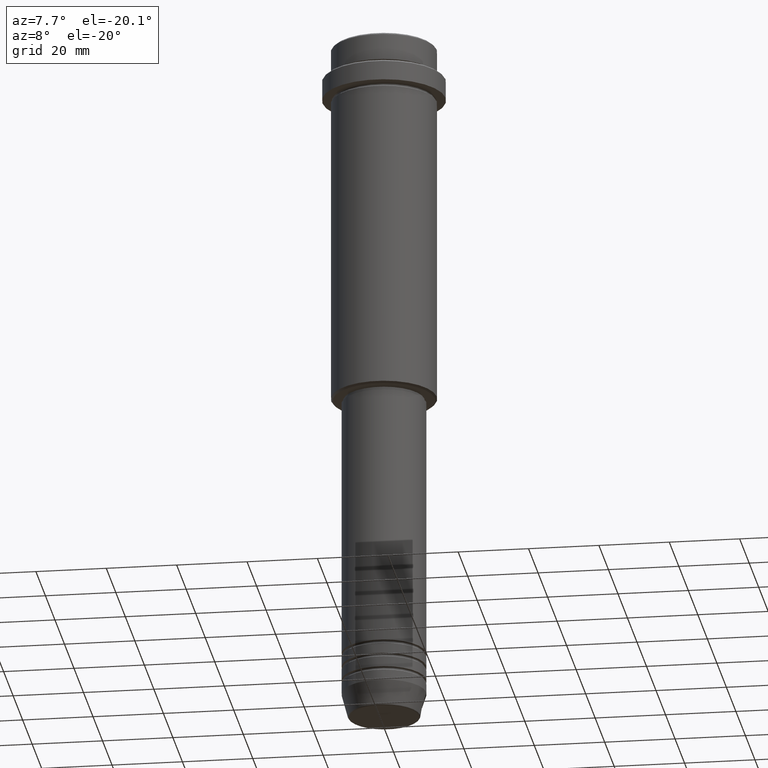
[diagram: clean part render]
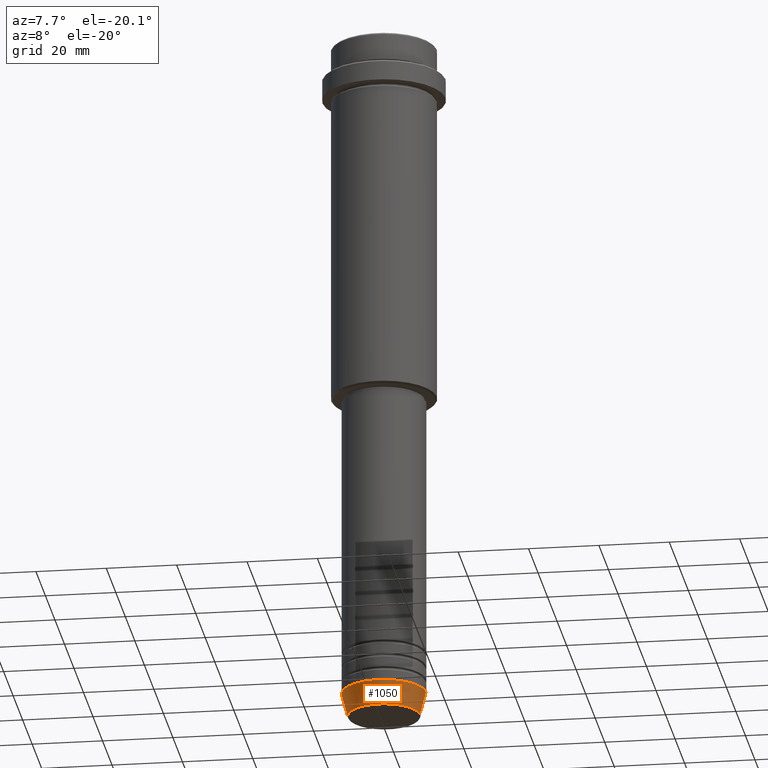
[diagram: same view with one face highlighted and labeled with its STEP entity id]
A machine part, auxiliary view. The second image highlights one B-rep face of the part: STEP entity #1050.
In plain terms, the highlighted conical surface has half-angle 15 deg.
Its self-contained STEP definition (entity closure, byte-faithful):
#16 = CARTESIAN_POINT ( 'NONE',  ( -10.22365507213719127, 1.360806402472382744E-15, -199.6294095225512706 ) ) ;
#32 = VERTEX_POINT ( 'NONE', #16 ) ;
#158 = DIRECTION ( 'NONE',  ( -0.000000000000000000, -0.000000000000000000, 1.000000000000000000 ) ) ;
#161 = EDGE_CURVE ( 'NONE', #32, #401, #841, .T. ) ;
#192 = CONICAL_SURFACE ( 'NONE', #565, 12.00000000000000000, 0.2617993877991500740 ) ;
#214 = AXIS2_PLACEMENT_3D ( 'NONE', #265, #158, #1022 ) ;
#265 = CARTESIAN_POINT ( 'NONE',  ( 0.000000000000000000, 0.000000000000000000, -193.0000000000000000 ) ) ;
#282 = ORIENTED_EDGE ( 'NONE', *, *, #161, .F. ) ;
#290 = DIRECTION ( 'NONE',  ( -0.000000000000000000, -0.000000000000000000, 1.000000000000000000 ) ) ;
#302 = DIRECTION ( 'NONE',  ( -0.2588190451025213501, 3.169619151431772337E-17, 0.9659258262890680902 ) ) ;
#305 = VERTEX_POINT ( 'NONE', #625 ) ;
#401 = VERTEX_POINT ( 'NONE', #792 ) ;
#464 = EDGE_CURVE ( 'NONE', #401, #1343, #1059, .T. ) ;
#499 = EDGE_CURVE ( 'NONE', #32, #305, #1033, .T. ) ;
#518 = CARTESIAN_POINT ( 'NONE',  ( 0.000000000000000000, 0.000000000000000000, -193.0000000000000000 ) ) ;
#565 = AXIS2_PLACEMENT_3D ( 'NONE', #518, #605, #1271 ) ;
#605 = DIRECTION ( 'NONE',  ( -0.000000000000000000, -0.000000000000000000, 1.000000000000000000 ) ) ;
#625 = CARTESIAN_POINT ( 'NONE',  ( 10.22365507213719127, 0.000000000000000000, -199.6294095225512706 ) ) ;
#720 = DIRECTION ( 'NONE',  ( 1.000000000000000000, 0.000000000000000000, 0.000000000000000000 ) ) ;
#792 = CARTESIAN_POINT ( 'NONE',  ( -12.00000000000000000, 1.469576158976823947E-15, -193.0000000000000000 ) ) ;
#841 = LINE ( 'NONE', #1282, #1304 ) ;
#978 = ORIENTED_EDGE ( 'NONE', *, *, #499, .T. ) ;
#991 = VECTOR ( 'NONE', #1356, 1000.000000000000000 ) ;
#1022 = DIRECTION ( 'NONE',  ( 1.000000000000000000, 0.000000000000000000, 0.000000000000000000 ) ) ;
#1033 = CIRCLE ( 'NONE', #1103, 10.22365507213719127 ) ;
#1050 = ADVANCED_FACE ( 'NONE', ( #1167 ), #192, .T. ) ;
#1059 = CIRCLE ( 'NONE', #214, 12.00000000000000000 ) ;
#1103 = AXIS2_PLACEMENT_3D ( 'NONE', #1269, #290, #720 ) ;
#1129 = CARTESIAN_POINT ( 'NONE',  ( 12.00000000000000000, 0.000000000000000000, -193.0000000000000000 ) ) ;
#1141 = ORIENTED_EDGE ( 'NONE', *, *, #1319, .T. ) ;
#1167 = FACE_OUTER_BOUND ( 'NONE', #1200, .T. ) ;
#1168 = ORIENTED_EDGE ( 'NONE', *, *, #464, .F. ) ;
#1200 = EDGE_LOOP ( 'NONE', ( #282, #978, #1141, #1168 ) ) ;
#1269 = CARTESIAN_POINT ( 'NONE',  ( 0.000000000000000000, 0.000000000000000000, -199.6294095225512706 ) ) ;
#1271 = DIRECTION ( 'NONE',  ( 1.000000000000000000, 0.000000000000000000, 0.000000000000000000 ) ) ;
#1274 = LINE ( 'NONE', #1381, #991 ) ;
#1282 = CARTESIAN_POINT ( 'NONE',  ( -12.00000000000000000, 1.469576158976823947E-15, -193.0000000000000000 ) ) ;
#1304 = VECTOR ( 'NONE', #302, 1000.000000000000000 ) ;
#1319 = EDGE_CURVE ( 'NONE', #305, #1343, #1274, .T. ) ;
#1343 = VERTEX_POINT ( 'NONE', #1129 ) ;
#1356 = DIRECTION ( 'NONE',  ( 0.2588190451025213501, 0.000000000000000000, 0.9659258262890680902 ) ) ;
#1381 = CARTESIAN_POINT ( 'NONE',  ( 12.00000000000000000, 0.000000000000000000, -193.0000000000000000 ) ) ;